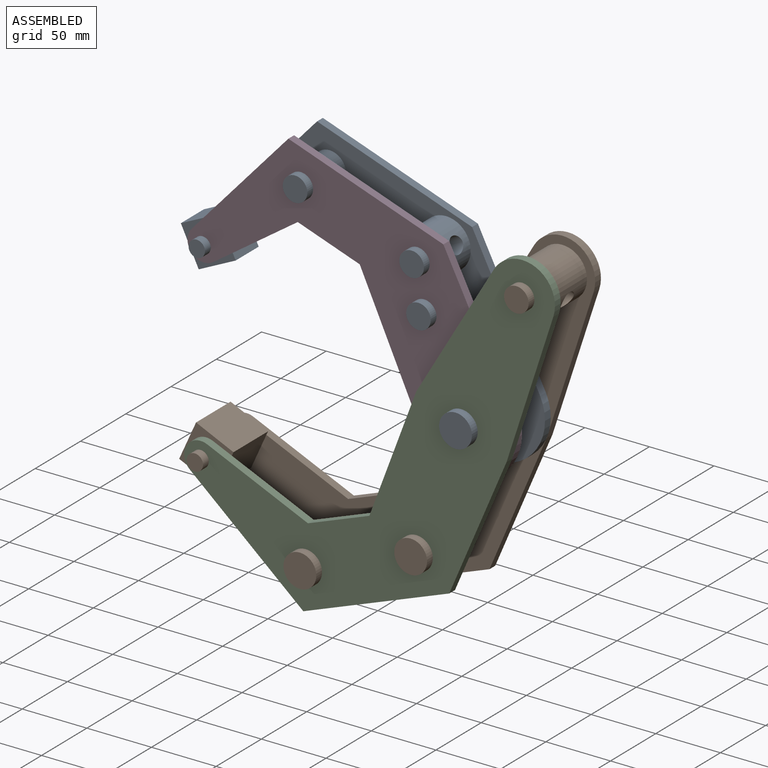
[diagram: assembled view]
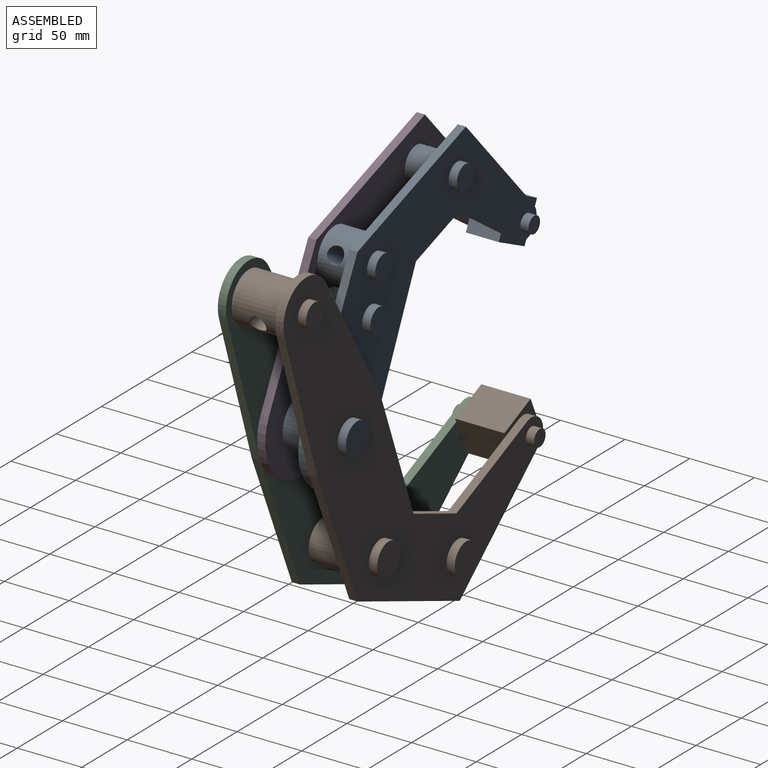
[diagram: assembled view, second angle]
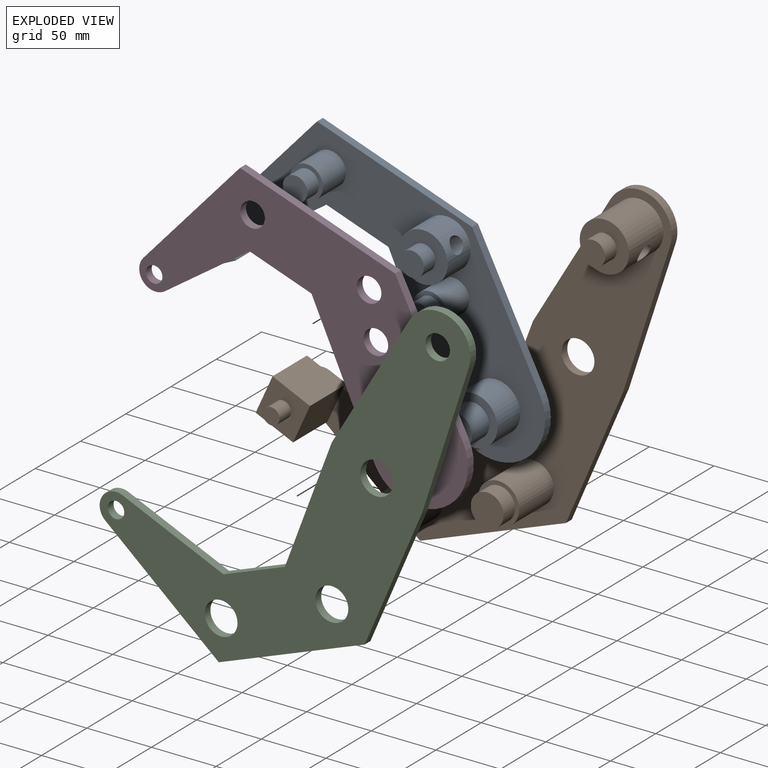
[diagram: exploded view]
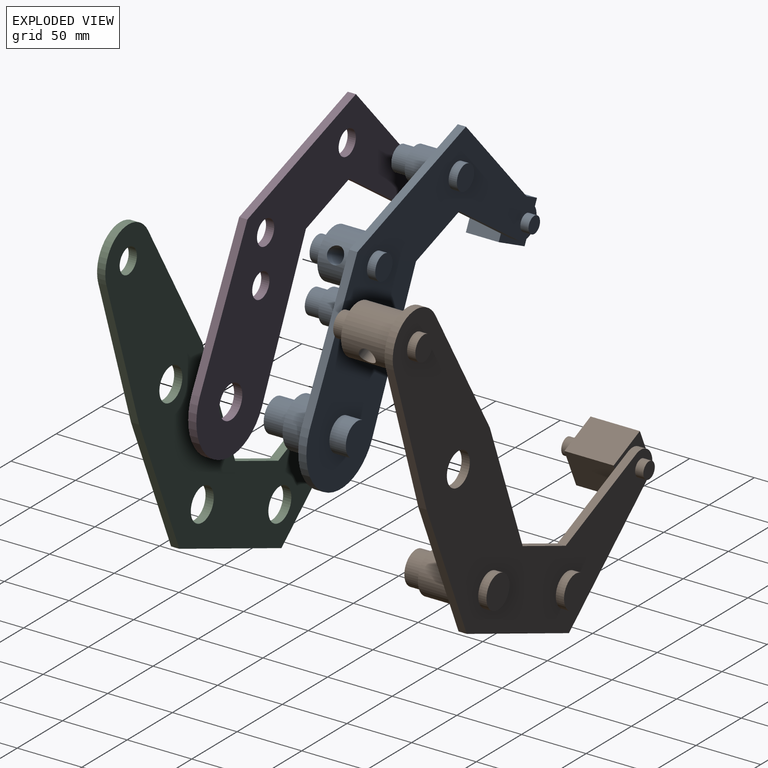
[diagram: exploded view, second angle]
ASSEMBLY  parts=4 mates=5
PART A: 45 faces, bbox 207.8x63.5x244.4 mm
  f0: cylinder r=19.05mm len=38.1mm, axis (0,-1,0), area 2782.6mm2, adj f1,f43,f44
  f1: plane 244.39x186.17mm, normal (0,-1,0), area 15100.3mm2, adj f0,f2,f4,f5,f6,f7,f8,f9
  f2: plane 103.31x42.12mm, normal (-0.38,0,0.93), area 708.5mm2, adj f1,f3,f9,f10,f31
  f3: cylinder r=12.7mm len=24.46mm, axis (0,-1,0), area 234.9mm2, adj f2,f4,f10,f31
  f4: plane 78.56x12.54mm, normal (0.16,0,-0.99), area 505.1mm2, adj f1,f3,f5,f10,f31
  f5: plane 35.92x35.92mm, normal (-0.71,0,-0.71), area 322.6mm2, adj f1,f4,f6,f10
  f6: plane 116.48x6.35mm, normal (-1,0,0.02), area 739.8mm2, adj f1,f5,f7,f10
  f7: cylinder r=38.11mm len=76.21mm, axis (0,-1,0), area 760.2mm2, adj f1,f6,f8,f10
  f8: plane 116.48x6.35mm, normal (1,0,0.02), area 739.8mm2, adj f1,f7,f9,f10
  f9: plane 89.8x89.8mm, normal (0.71,0,0.71), area 806.4mm2, adj f1,f2,f8,f10
  f10: plane 244.39x203.21mm, normal (0,1,0), area 17550.1mm2, adj f2,f3,f4,f5,f6,f7,f8,f9
  f11: plane 25.4x25.4mm, normal (0,-1,0), area 506.7mm2, adj f12
  f12: cylinder r=12.7mm len=25.4mm, axis (0,1,0), area 1520.1mm2, adj f11,f13
  f13: plane 38.1x38.1mm, normal (0,-1,0), area 633.4mm2, adj f12,f14
  f14: cylinder r=19.05mm len=38.1mm, axis (0,1,0), area 3040.2mm2, adj f1,f13
  f15: cylinder r=12.7mm len=25.4mm, axis (0,1,0), area 1013.4mm2, adj f10,f16
  f16: plane 25.4x25.4mm, normal (0,1,0), area 506.7mm2, adj f15
  f17: plane 19.05x19.05mm, normal (0,-1,0), area 285mm2, adj f18
  f18: cylinder r=9.53mm len=19.05mm, axis (0,-1,0), area 760.1mm2, adj f17,f19
  f19: plane 25.4x25.4mm, normal (0,-1,0), area 221.7mm2, adj f18,f20
  f20: cylinder r=12.7mm len=25.4mm, axis (0,-1,0), area 2026.8mm2, adj f1,f19
  f21: cylinder r=9.53mm len=19.05mm, axis (0,-1,0), area 380mm2, adj f10,f22
  f22: plane 19.05x19.05mm, normal (0,1,0), area 285mm2, adj f21
  f23: cylinder r=12.7mm len=25.4mm, axis (0,-1,0), area 2026.8mm2, adj f1,f24
  f24: plane 25.4x25.4mm, normal (0,-1,0), area 221.7mm2, adj f23,f25
  f25: cylinder r=9.53mm len=19.05mm, axis (0,-1,0), area 760.1mm2, adj f24,f26
  f26: plane 19.05x19.05mm, normal (0,-1,0), area 285mm2, adj f25
  f27: cylinder r=9.53mm len=19.05mm, axis (0,-1,0), area 380mm2, adj f10,f28
  f28: plane 19.05x19.05mm, normal (0,1,0), area 285mm2, adj f27
  f29: plane 12.7x12.7mm, normal (0,1,0), area 126.7mm2, adj f30
  f30: cylinder r=6.35mm len=12.7mm, axis (0,-1,0), area 253.4mm2, adj f10,f29
  f31: plane 31.75x31.75mm, normal (0,1,0), area 363.3mm2, adj f2,f3,f4,f32,f33,f34,f35
  f32: plane 31.75x25.4mm, normal (1,0,0), area 806.5mm2, adj f1,f31,f33,f35,f36
  f33: plane 31.75x25.4mm, normal (0,0,1), area 806.5mm2, adj f1,f31,f32,f34,f36
  f34: plane 31.75x25.4mm, normal (-1,0,0), area 806.5mm2, adj f31,f33,f35,f36
  f35: plane 31.75x25.4mm, normal (0,0,-1), area 806.5mm2, adj f31,f32,f34,f36
  f36: plane 31.75x31.75mm, normal (0,-1,0), area 881.4mm2, adj f32,f33,f34,f35,f38
  f37: plane 12.7x12.7mm, normal (0,-1,0), area 126.7mm2, adj f38
  f38: cylinder r=6.35mm len=12.7mm, axis (0,-1,0), area 506.7mm2, adj f36,f37
  f39: plane 19.05x19.05mm, normal (0,1,0), area 285mm2, adj f40
  f40: cylinder r=9.53mm len=19.05mm, axis (0,-1,0), area 380mm2, adj f10,f39
  f41: plane 19.05x19.05mm, normal (0,-1,0), area 285mm2, adj f42
  f42: cylinder r=9.53mm len=19.05mm, axis (0,-1,0), area 760.1mm2, adj f41,f43
  f43: plane 38.1x38.1mm, normal (0,-1,0), area 855.1mm2, adj f0,f42
  f44: cylinder r=6.35mm len=38.1mm, axis (-1,0,0), area 1477mm2, adj f0
PART B: 42 faces, bbox 208.7x63.5x337 mm
  f0: cylinder r=19.05mm len=38.1mm, axis (0,-1,0), area 4302.7mm2, adj f1,f38,f41
  f1: plane 337x183.86mm, normal (0,-1,0), area 21351.2mm2, adj f0,f2,f3,f4,f5,f6,f8,f9
  f2: cylinder r=25.4mm len=50.49mm, axis (0,-1,0), area 471.2mm2, adj f1,f3,f11,f12
  f3: plane 117.09x12.94mm, normal (-0.99,0,0.11), area 748mm2, adj f1,f2,f4,f12
  f4: plane 103.01x6.75mm, normal (-1,0,-0.07), area 655.5mm2, adj f1,f3,f5,f12
  f5: plane 35.92x35.92mm, normal (-0.71,0,0.71), area 322.6mm2, adj f1,f4,f6,f12
  f6: plane 85.16x6.35mm, normal (-0.01,0,1), area 540.8mm2, adj f1,f5,f7,f12,f28
  f7: cylinder r=12.7mm len=24.88mm, axis (0,-1,0), area 229.5mm2, adj f6,f8,f12,f28
  f8: plane 111.09x32.72mm, normal (-0.28,0,-0.96), area 735.4mm2, adj f1,f7,f9,f12,f28
  f9: plane 85.31x85.31mm, normal (0.71,0,-0.71), area 766.1mm2, adj f1,f8,f10,f12
  f10: plane 112.77x6.35mm, normal (1,0,0.02), area 716.3mm2, adj f1,f9,f11,f12
  f11: plane 116.31x12.85mm, normal (0.99,0,0.11), area 743mm2, adj f1,f2,f10,f12
  f12: plane 337x205.51mm, normal (0,1,0), area 23346.7mm2, adj f2,f3,f4,f5,f6,f7,f8,f9
  f13: cylinder r=12.7mm len=25.4mm, axis (0,-1,0), area 506.7mm2, adj f1,f12
  f14: plane 25.4x25.4mm, normal (0,-1,0), area 506.7mm2, adj f15
  f15: cylinder r=12.7mm len=25.4mm, axis (0,-1,0), area 1013.4mm2, adj f14,f16
  f16: plane 31.75x31.75mm, normal (0,-1,0), area 285mm2, adj f15,f17
  f17: cylinder r=15.88mm len=38.1mm, axis (0,-1,0), area 3800.3mm2, adj f1,f16
  f18: cylinder r=12.7mm len=25.4mm, axis (0,-1,0), area 506.7mm2, adj f12,f19
  f19: plane 25.4x25.4mm, normal (0,1,0), area 506.7mm2, adj f18
  f20: plane 25.4x25.4mm, normal (0,-1,0), area 506.7mm2, adj f21
  f21: cylinder r=12.7mm len=25.4mm, axis (0,-1,0), area 1013.4mm2, adj f20,f22
  f22: plane 31.75x31.75mm, normal (0,-1,0), area 285mm2, adj f21,f23
  f23: cylinder r=15.88mm len=38.1mm, axis (0,-1,0), area 3800.3mm2, adj f1,f22
  f24: cylinder r=12.7mm len=25.4mm, axis (0,-1,0), area 506.7mm2, adj f12,f25
  f25: plane 25.4x25.4mm, normal (0,1,0), area 506.7mm2, adj f24
  f26: cylinder r=6.35mm len=12.7mm, axis (0,-1,0), area 253.4mm2, adj f12,f27
  f27: plane 12.7x12.7mm, normal (0,1,0), area 126.7mm2, adj f26
  f28: plane 31.75x31.75mm, normal (0,1,0), area 311.1mm2, adj f6,f7,f8,f29,f30,f31,f32
  f29: plane 38.1x31.75mm, normal (0,0,-1), area 1209.7mm2, adj f1,f28,f30,f32,f33
  f30: plane 38.1x31.75mm, normal (1,0,0), area 1209.7mm2, adj f1,f28,f29,f31,f33
  f31: plane 38.1x31.75mm, normal (0,0,1), area 1209.7mm2, adj f28,f30,f32,f33
  f32: plane 38.1x31.75mm, normal (-1,0,0), area 1209.7mm2, adj f28,f29,f31,f33
  f33: plane 31.75x31.75mm, normal (0,-1,0), area 881.4mm2, adj f29,f30,f31,f32,f35
  f34: plane 12.7x12.7mm, normal (0,-1,0), area 126.7mm2, adj f35
  f35: cylinder r=6.35mm len=12.7mm, axis (0,-1,0), area 506.7mm2, adj f33,f34
  f36: plane 19.05x19.05mm, normal (0,1,0), area 285mm2, adj f37
  f37: cylinder r=9.53mm len=19.05mm, axis (0,-1,0), area 380mm2, adj f12,f36
  f38: plane 38.1x38.1mm, normal (0,-1,0), area 855.1mm2, adj f0,f39
  f39: cylinder r=9.53mm len=19.05mm, axis (0,-1,0), area 760.1mm2, adj f38,f40
  f40: plane 19.05x19.05mm, normal (0,-1,0), area 285mm2, adj f39
  f41: cylinder r=6.35mm len=38.1mm, axis (-1,0,0), area 1477mm2, adj f0
PART C: 17 faces, bbox 205.5x6.4x337 mm
  f0: cylinder r=25.4mm len=50.49mm, axis (0,1,0), area 471.2mm2, adj f1,f9,f10,f11
  f1: plane 116.31x12.85mm, normal (0.99,0,0.11), area 743mm2, adj f0,f2,f10,f11
  f2: plane 112.77x6.35mm, normal (1,0,0.02), area 716.3mm2, adj f1,f3,f10,f11
  f3: plane 85.31x85.31mm, normal (0.71,0,-0.71), area 766.1mm2, adj f2,f4,f10,f11
  f4: plane 111.09x32.72mm, normal (-0.28,0,-0.96), area 735.4mm2, adj f3,f5,f10,f11
  f5: cylinder r=12.7mm len=24.88mm, axis (0,1,0), area 229.5mm2, adj f4,f6,f10,f11
  f6: plane 85.16x6.35mm, normal (-0.01,0,1), area 540.8mm2, adj f5,f7,f10,f11
  f7: plane 35.92x35.92mm, normal (-0.71,0,0.71), area 322.6mm2, adj f6,f8,f10,f11
  f8: plane 103.01x6.75mm, normal (-1,0,-0.07), area 655.5mm2, adj f7,f9,f10,f11
  f9: plane 117.09x12.94mm, normal (-0.99,0,0.11), area 748mm2, adj f0,f8,f10,f11
  f10: plane 337x205.51mm, normal (0,-1,0), area 23346.7mm2, adj f0,f1,f2,f3,f4,f5,f6,f7
  f11: plane 337x205.51mm, normal (0,1,0), area 23346.7mm2, adj f0,f1,f2,f3,f4,f5,f6,f7
  f12: cylinder r=6.35mm len=12.7mm, axis (0,1,0), area 253.4mm2, adj f10,f11
  f13: cylinder r=12.7mm len=25.4mm, axis (0,1,0), area 506.7mm2, adj f10,f11
  f14: cylinder r=12.7mm len=25.4mm, axis (0,1,0), area 506.7mm2, adj f10,f11
  f15: cylinder r=12.7mm len=25.4mm, axis (0,1,0), area 506.7mm2, adj f10,f11
  f16: cylinder r=9.53mm len=19.05mm, axis (0,1,0), area 380mm2, adj f10,f11
PART D: 15 faces, bbox 203.2x6.4x244.4 mm
  f0: plane 103.31x42.12mm, normal (-0.38,0,0.93), area 708.5mm2, adj f1,f7,f8,f9
  f1: plane 89.8x89.8mm, normal (0.71,0,0.71), area 806.4mm2, adj f0,f2,f8,f9
  f2: plane 116.48x6.35mm, normal (1,0,0.02), area 739.8mm2, adj f1,f3,f8,f9
  f3: cylinder r=38.11mm len=76.21mm, axis (0,1,0), area 760.2mm2, adj f2,f4,f8,f9
  f4: plane 116.48x6.35mm, normal (-1,0,0.02), area 739.8mm2, adj f3,f5,f8,f9
  f5: plane 35.92x35.92mm, normal (-0.71,0,-0.71), area 322.6mm2, adj f4,f6,f8,f9
  f6: plane 78.56x12.54mm, normal (0.16,0,-0.99), area 505.1mm2, adj f5,f7,f8,f9
  f7: cylinder r=12.7mm len=24.46mm, axis (0,1,0), area 234.9mm2, adj f0,f6,f8,f9
  f8: plane 244.39x203.21mm, normal (0,-1,0), area 17550.1mm2, adj f0,f1,f2,f3,f4,f5,f6,f7
  f9: plane 244.39x203.21mm, normal (0,1,0), area 17550.1mm2, adj f0,f1,f2,f3,f4,f5,f6,f7
  f10: cylinder r=12.7mm len=25.4mm, axis (0,1,0), area 506.7mm2, adj f8,f9
  f11: cylinder r=9.53mm len=19.05mm, axis (0,1,0), area 380mm2, adj f8,f9
  f12: cylinder r=9.53mm len=19.05mm, axis (0,1,0), area 380mm2, adj f8,f9
  f13: cylinder r=9.53mm len=19.05mm, axis (0,1,0), area 380mm2, adj f8,f9
  f14: cylinder r=6.35mm len=12.7mm, axis (0,1,0), area 253.4mm2, adj f8,f9
PLACE A rot(axis=(0,-1,0),25.8deg) t=(-107.73,-1.45,125.08)mm
PLACE B rot(axis=(0,1,0),24.3deg) t=(-107.73,4.9,125.08)mm
PLACE C rot(axis=(0,1,0),24.3deg) t=(-107.73,4.9,125.08)mm
PLACE D rot(axis=(0,-1,0),25.8deg) t=(-107.73,-1.45,125.08)mm
MATE revolute D.f10 <-> A.f12  axis (0,1,0) through (-107.73,-26.85,125.08)mm
MATE fastened C.f13 <-> B.f21  axis (0,1,0) through (-228.11,-33.2,-5)mm
MATE revolute C.f15 <-> D.f3  axis (0,1,0) through (-107.73,-33.2,125.08)mm
MATE revolute B.f13 <-> A.f12  axis (0,-1,0) through (-107.73,4.9,125.08)mm
MATE fastened A.f23 <-> D.f11  axis (0,-1,0) through (-236.3,-26.85,257.18)mm
